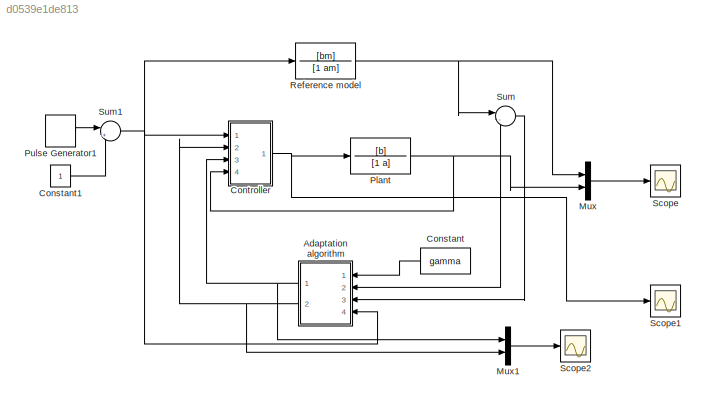
MODEL slx_d0539e1de813
KIND model
CONFIG AbsTol = auto
CONFIG EnableMultiTasking = off
CONFIG FixedStep = 0.1
CONFIG MaxStep = auto
CONFIG MinStep = auto
CONFIG RelTol = 1e-3
CONFIG SampleTimeConstraint = Unconstrained
CONFIG Solver = ode4
CONFIG SolverName = ode4
CONFIG StartTime = 0.0
CONFIG StopTime = 200
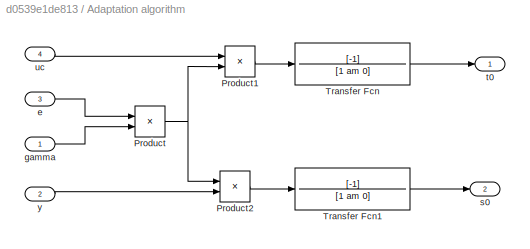
BLOCK [SubSystem] Adaptation algorithm
  Ports = [4, 2]
  RequestExecContextInheritance = off
BLOCK [Product] Adaptation algorithm/Product
  InputSameDT = off
  OutDataTypeStr = Inherit: Inherit via internal rule
  Ports = [2, 1]
  RndMeth = Floor
  SaturateOnIntegerOverflow = off
BLOCK [Product] Adaptation algorithm/Product1
  InputSameDT = off
  OutDataTypeStr = Inherit: Inherit via internal rule
  Ports = [2, 1]
  RndMeth = Floor
  SaturateOnIntegerOverflow = off
BLOCK [Product] Adaptation algorithm/Product2
  InputSameDT = off
  OutDataTypeStr = Inherit: Inherit via internal rule
  Ports = [2, 1]
  RndMeth = Floor
  SaturateOnIntegerOverflow = off
BLOCK [TransferFcn] Adaptation algorithm/Transfer Fcn
  Denominator = [1 am 0]
  Numerator = [-1]
BLOCK [TransferFcn] Adaptation algorithm/Transfer Fcn1
  Denominator = [1 am 0]
  Numerator = [-1]
BLOCK [Inport] Adaptation algorithm/e
  IconDisplay = Port number
  Port = 3
BLOCK [Inport] Adaptation algorithm/gamma
  IconDisplay = Port number
BLOCK [Outport] Adaptation algorithm/s0
  IconDisplay = Port number
  Port = 2
BLOCK [Outport] Adaptation algorithm/t0
  IconDisplay = Port number
BLOCK [Inport] Adaptation algorithm/uc
  IconDisplay = Port number
  Port = 4
BLOCK [Inport] Adaptation algorithm/y
  IconDisplay = Port number
  Port = 2
BLOCK [Constant] Constant
  Value = gamma
BLOCK [Constant] Constant1
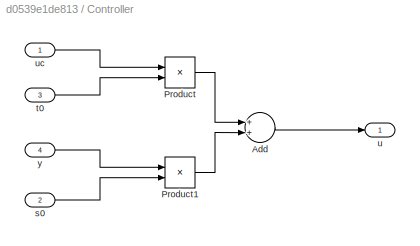
BLOCK [SubSystem] Controller
  Ports = [4, 1]
  RequestExecContextInheritance = off
BLOCK [Sum] Controller/Add
  InputSameDT = off
  OutDataTypeStr = Inherit: Inherit via internal rule
  Ports = [2, 1]
  SaturateOnIntegerOverflow = off
BLOCK [Product] Controller/Product
  InputSameDT = off
  OutDataTypeStr = Inherit: Inherit via internal rule
  Ports = [2, 1]
  RndMeth = Floor
  SaturateOnIntegerOverflow = off
BLOCK [Product] Controller/Product1
  InputSameDT = off
  OutDataTypeStr = Inherit: Inherit via internal rule
  Ports = [2, 1]
  RndMeth = Floor
  SaturateOnIntegerOverflow = off
BLOCK [Inport] Controller/s0
  IconDisplay = Port number
  Port = 2
BLOCK [Inport] Controller/t0
  IconDisplay = Port number
  Port = 3
BLOCK [Outport] Controller/u
  IconDisplay = Port number
BLOCK [Inport] Controller/uc
  IconDisplay = Port number
BLOCK [Inport] Controller/y
  IconDisplay = Port number
  Port = 4
BLOCK [Mux] Mux
  DisplayOption = bar
  Inputs = 2
  Ports = [2, 1]
BLOCK [Mux] Mux1
  DisplayOption = bar
  Inputs = 2
  Ports = [2, 1]
BLOCK [TransferFcn] Plant
  Denominator = [1 a]
  Numerator = [b]
BLOCK [DiscretePulseGenerator] Pulse Generator1
  Amplitude = 2
  Period = 20
  Ports = [0, 1]
  PulseType = Time based
  PulseWidth = 50
BLOCK [TransferFcn] Reference model
  Denominator = [1 am]
  Numerator = [bm]
BLOCK [Scope] Scope
  Floating = off
  NumInputPorts = 1
  Ports = [1]
  ScopeSpecificationString = Simulink.scopes.TimeScopeBlockCfg('CurrentConfiguration', extmgr.ConfigurationSet(extmgr.Configuration('Core','General UI',true),extmgr.Configuration('Core','Source UI',true),extmgr.Configuration('Sources','WiredSimulink',true),extmgr.Configuration('Visuals','Time Domain',true,'SerializedDisplays',{struct('MinYLimReal','-0.15906','MaxYLimReal','1.43155','YLabelReal','','MinYLimMag','0.00000','MaxY...<+1398ch>
BLOCK [Scope] Scope1
  Floating = off
  NumInputPorts = 1
  Ports = [1]
  ScopeSpecificationString = Simulink.scopes.TimeScopeBlockCfg('CurrentConfiguration', extmgr.ConfigurationSet(extmgr.Configuration('Core','General UI',true),extmgr.Configuration('Core','Source UI',true),extmgr.Configuration('Sources','WiredSimulink',true,'DataLoggingVariableName','ScopeData1'),extmgr.Configuration('Visuals','Time Domain',true,'SerializedDisplays',{struct('MinYLimReal','-1.35347','MaxYLimReal','3.36098','YLab...<+1398ch>
BLOCK [Scope] Scope2
  Floating = off
  NumInputPorts = 1
  Ports = [1]
  ScopeSpecificationString = Simulink.scopes.TimeScopeBlockCfg('CurrentConfiguration', extmgr.ConfigurationSet(extmgr.Configuration('Core','General UI',true),extmgr.Configuration('Core','Source UI',true),extmgr.Configuration('Sources','WiredSimulink',true,'DataLoggingVariableName','ScopeData1'),extmgr.Configuration('Visuals','Time Domain',true,'SerializedDisplays',{struct('MinYLimReal','-1.42629','MaxYLimReal','3.46907','YLab...<+1461ch>
BLOCK [Sum] Sum
  IconShape = round
  InputSameDT = off
  Inputs = |-+
  OutDataTypeStr = Inherit: Inherit via internal rule
  Ports = [2, 1]
  SaturateOnIntegerOverflow = off
BLOCK [Sum] Sum1
  IconShape = round
  InputSameDT = off
  Inputs = |+-
  OutDataTypeStr = Inherit: Inherit via internal rule
  Ports = [2, 1]
  SaturateOnIntegerOverflow = off
LINE Adaptation algorithm/Product1:1 -> Adaptation algorithm/Transfer Fcn:1
LINE Adaptation algorithm/Product2:1 -> Adaptation algorithm/Transfer Fcn1:1
NET Adaptation algorithm/Product:1 -> Adaptation algorithm/Product1:2, Adaptation algorithm/Product2:1
LINE Adaptation algorithm/Transfer Fcn1:1 -> Adaptation algorithm/s0:1
LINE Adaptation algorithm/Transfer Fcn:1 -> Adaptation algorithm/t0:1
LINE Adaptation algorithm/e:1 -> Adaptation algorithm/Product:1
LINE Adaptation algorithm/gamma:1 -> Adaptation algorithm/Product:2
LINE Adaptation algorithm/uc:1 -> Adaptation algorithm/Product1:1
LINE Adaptation algorithm/y:1 -> Adaptation algorithm/Product2:2
NET Adaptation algorithm:1 -> Controller:3, Mux1:1
NET Adaptation algorithm:2 -> Controller:2, Mux1:2
LINE Constant1:1 -> Sum1:2
LINE Constant:1 -> Adaptation algorithm:1
LINE Controller/Add:1 -> Controller/u:1
LINE Controller/Product1:1 -> Controller/Add:2
LINE Controller/Product:1 -> Controller/Add:1
LINE Controller/s0:1 -> Controller/Product1:2
LINE Controller/t0:1 -> Controller/Product:2
LINE Controller/uc:1 -> Controller/Product:1
LINE Controller/y:1 -> Controller/Product1:1
NET Controller:1 -> Plant:1, Scope1:1
LINE Mux1:1 -> Scope2:1
LINE Mux:1 -> Scope:1
NET Plant:1 -> Adaptation algorithm:2, Controller:4, Mux:2, Sum:2
LINE Pulse Generator1:1 -> Sum1:1
NET Reference model:1 -> Mux:1, Sum:1
NET Sum1:1 -> Adaptation algorithm:4, Controller:1, Reference model:1
LINE Sum:1 -> Adaptation algorithm:3
note: NET lines group one-source signal fan-out (src -> all destinations, sorted); 1:1 wires keep LINE
